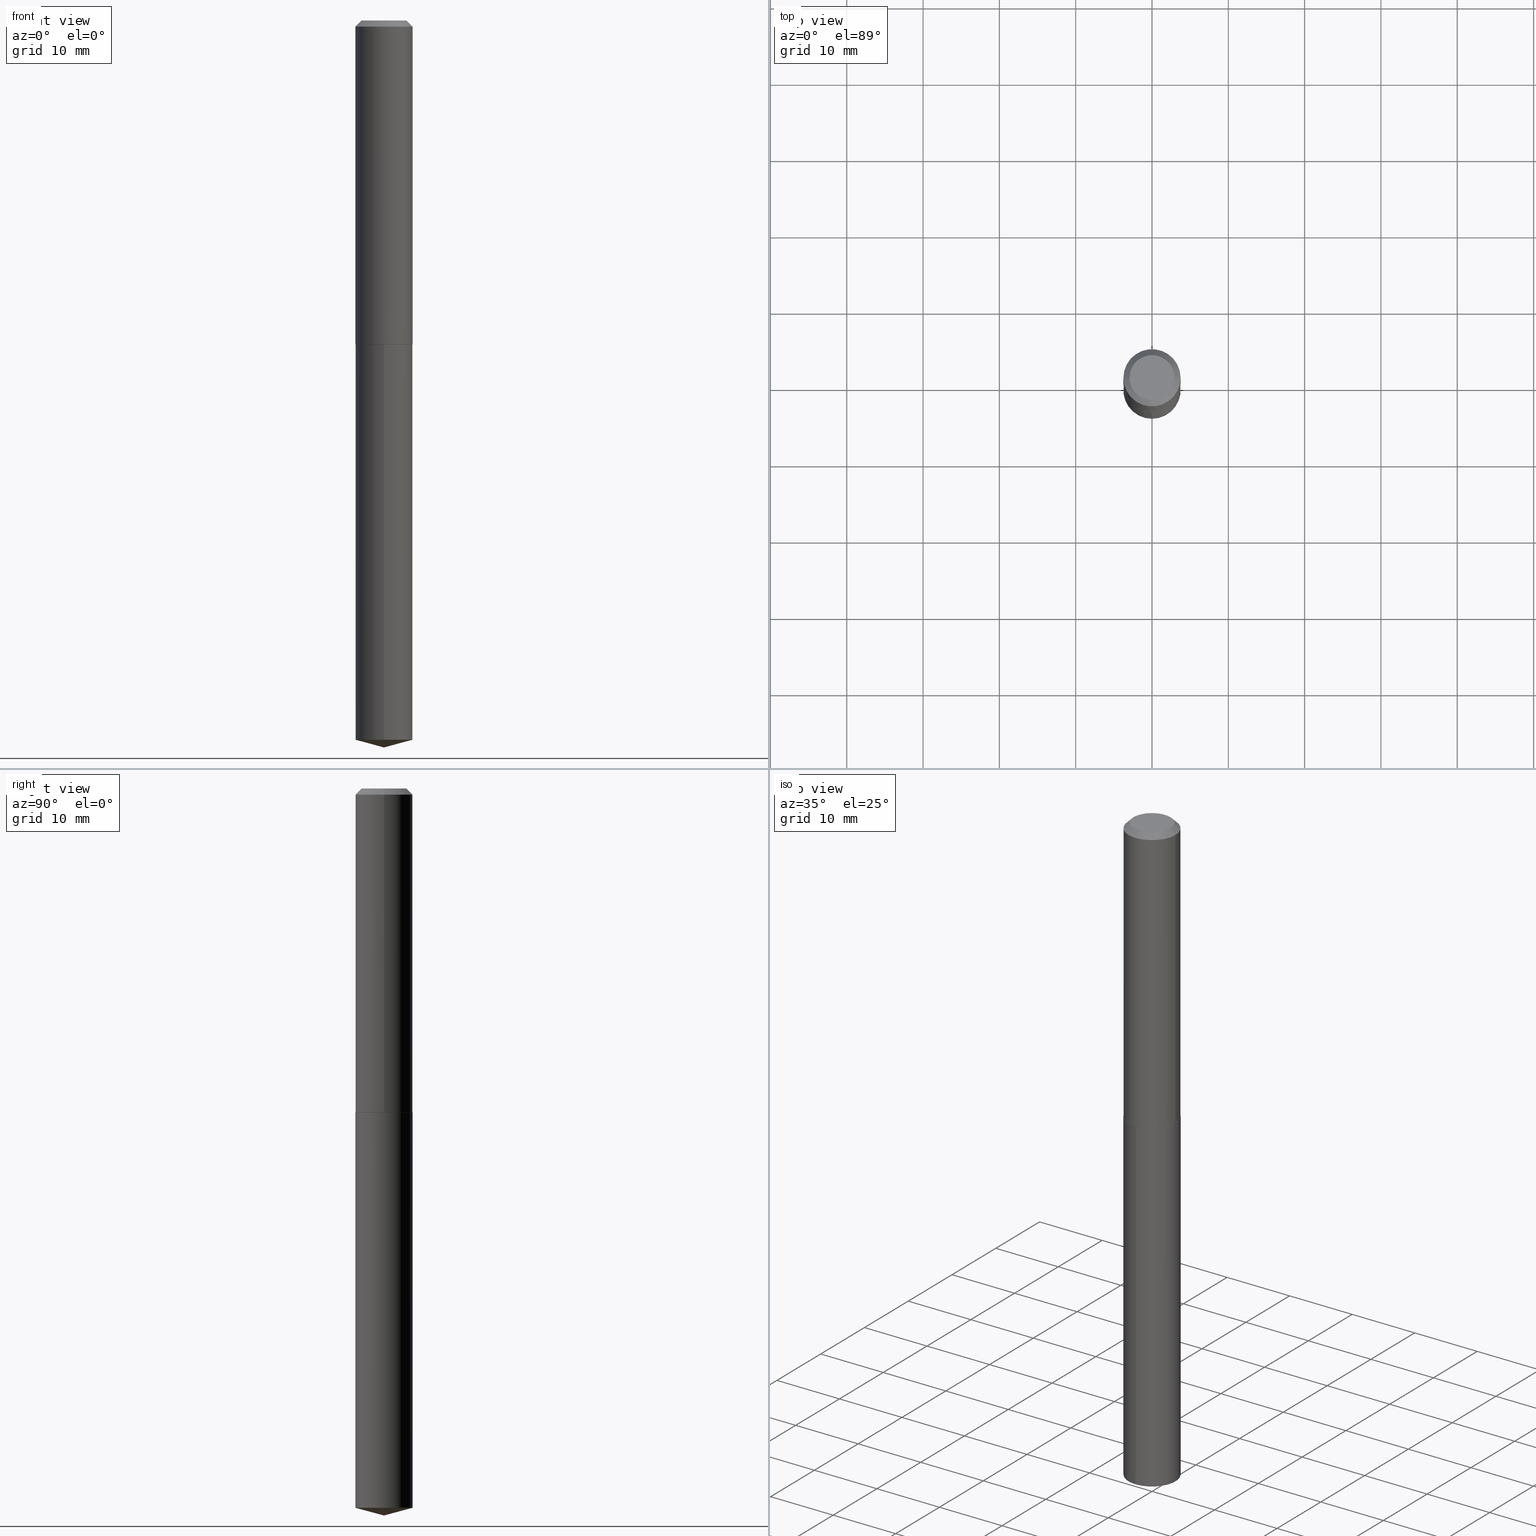
[diagram: canonical four-view strip — front | top / right | iso, engineering-drawing reading convention]
A machine part, canonical four-view strip (front | top / right | iso — engineering-drawing reading convention). The complete STEP part file that produces these views, byte-faithful:
ISO-10303-21;
HEADER;
FILE_DESCRIPTION (( 'STEP AP203' ),
    '1' );
FILE_NAME ('58071.STEP',
    '2024-04-23T01:21:34',
    ( '' ),
    ( '' ),
    'SwSTEP 2.0',
    'SolidWorks 2023',
    '' );
FILE_SCHEMA (( 'CONFIG_CONTROL_DESIGN' ));
ENDSEC;

DATA;
#1 = APPROVAL_DATE_TIME ( #176, #377 ) ;
#2 = FACE_OUTER_BOUND ( 'NONE', #104, .T. ) ;
#3 = CALENDAR_DATE ( 2024, 22, 4 ) ;
#4 = AXIS2_PLACEMENT_3D ( 'NONE', #26, #32, #238 ) ;
#5 = DIRECTION ( 'NONE',  ( -2.438088387897960049E-29, 3.491481338843145188E-15, 1.000000000000000000 ) ) ;
#6 = CC_DESIGN_DATE_AND_TIME_ASSIGNMENT ( #149, #271, ( #236 ) ) ;
#7 = FACE_OUTER_BOUND ( 'NONE', #385, .T. ) ;
#8 = CIRCLE ( 'NONE', #17, 0.1474999999999999922 ) ;
#9 = EDGE_CURVE ( 'NONE', #108, #114, #170, .T. ) ;
#10 = CARTESIAN_POINT ( 'NONE',  ( -3.743544432386685216E-48, 5.344789307371254673E-34, 1.530808498934202323E-19 ) ) ;
#11 = CIRCLE ( 'NONE', #374, 0.1474999999999999922 ) ;
#12 = CARTESIAN_POINT ( 'NONE',  ( -8.711028179821848430E-28, 1.243632738645237453E-13, 35.62007874015748143 ) ) ;
#13 = EDGE_CURVE ( 'NONE', #228, #379, #56, .T. ) ;
#14 = FACE_OUTER_BOUND ( 'NONE', #382, .T. ) ;
#15 = ORIENTED_EDGE ( 'NONE', *, *, #305, .T. ) ;
#16 = CARTESIAN_POINT ( 'NONE',  ( -8.711028179821848430E-28, 1.243632738645237453E-13, 35.62007874015748143 ) ) ;
#17 = AXIS2_PLACEMENT_3D ( 'NONE', #321, #230, #45 ) ;
#18 = ADVANCED_FACE ( 'NONE', ( #320 ), #186, .T. ) ;
#19 = LINE ( 'NONE', #144, #23 ) ;
#20 = LINE ( 'NONE', #378, #369 ) ;
#21 = CARTESIAN_POINT ( 'NONE',  ( 4.083932906329177803E-29, -5.830773835868053056E-15, -1.669999999999999929 ) ) ;
#22 = ORIENTED_EDGE ( 'NONE', *, *, #282, .F. ) ;
#23 = VECTOR ( 'NONE', #173, 39.37007874015748854 ) ;
#24 = CARTESIAN_POINT ( 'NONE',  ( 7.642090019328604414E-31, -1.091087918388490513E-16, -0.03125000000000021511 ) ) ;
#25 = EDGE_CURVE ( 'NONE', #228, #257, #19, .T. ) ;
#26 = CARTESIAN_POINT ( 'NONE',  ( 4.082710171926086683E-29, -5.829028095198632341E-15, -1.669500000000000428 ) ) ;
#27 = PERSON_AND_ORGANIZATION ( #86, #90 ) ;
#28 = CYLINDRICAL_SURFACE ( 'NONE', #380, 0.1474999999999999922 ) ;
#29 = PRODUCT_DEFINITION_SHAPE ( 'NONE', 'NONE',  #132 ) ;
#30 = AXIS2_PLACEMENT_3D ( 'NONE', #65, #335, #187 ) ;
#31 = CARTESIAN_POINT ( 'NONE',  ( 9.170535404465891907E-29, -1.309301580912238028E-14, -3.750000000000000000 ) ) ;
#32 = DIRECTION ( 'NONE',  ( -2.445468806185136597E-29, 3.491481338843145583E-15, 1.000000000000000000 ) ) ;
#33 = MANIFOLD_SOLID_BREP ( 'Body-Move/Copy2[1]', #141 ) ;
#34 = VECTOR ( 'NONE', #352, 39.37007874015748143 ) ;
#35 = CARTESIAN_POINT ( 'NONE',  ( 0.1475000000000002143, -6.859015090157358101E-15, -1.669500000000000428 ) ) ;
#36 = VECTOR ( 'NONE', #334, 39.37007874015748143 ) ;
#37 = DIRECTION ( 'NONE',  ( 2.438088387897960049E-29, -3.491481338843145188E-15, -1.000000000000000000 ) ) ;
#38 = ORIENTED_EDGE ( 'NONE', *, *, #117, .F. ) ;
#39 = DIRECTION ( 'NONE',  ( -2.445535589774475660E-29, 3.491385700942126033E-15, 1.000000000000000000 ) ) ;
#40 = ORIENTED_EDGE ( 'NONE', *, *, #200, .F. ) ;
#41 = APPROVAL ( #332, 'UNSPECIFIED' ) ;
#42 = CIRCLE ( 'NONE', #226, 0.1474999999999999922 ) ;
#43 = DIRECTION ( 'NONE',  ( 1.000000000000000000, -6.982962677686266711E-15, 4.876177086992617819E-29 ) ) ;
#44 = ORIENTED_EDGE ( 'NONE', *, *, #82, .T. ) ;
#45 = DIRECTION ( 'NONE',  ( -6.982962677686265922E-15, -1.000000000000000000, 3.704200669375272254E-15 ) ) ;
#46 = ORIENTED_EDGE ( 'NONE', *, *, #200, .T. ) ;
#47 = EDGE_CURVE ( 'NONE', #257, #108, #194, .T. ) ;
#48 = LINE ( 'NONE', #103, #188 ) ;
#49 = ORIENTED_EDGE ( 'NONE', *, *, #92, .T. ) ;
#50 =( CONVERSION_BASED_UNIT ( 'INCH', #384 ) LENGTH_UNIT ( ) NAMED_UNIT ( #267 ) );
#51 = ORIENTED_EDGE ( 'NONE', *, *, #371, .T. ) ;
#52 = DIRECTION ( 'NONE',  ( -2.445535589774475660E-29, 3.491385700942126033E-15, 1.000000000000000000 ) ) ;
#53 = APPROVAL ( #211, 'UNSPECIFIED' ) ;
#54 = COORDINATED_UNIVERSAL_TIME_OFFSET ( 5, 0, .BEHIND. ) ;
#55 = CARTESIAN_POINT ( 'NONE',  ( 4.082710171926086683E-29, -5.829028095198632341E-15, -1.669500000000000428 ) ) ;
#56 = CIRCLE ( 'NONE', #106, 0.1470000000000003804 ) ;
#57 = CONICAL_SURFACE ( 'NONE', #4, 0.1475000000000002143, 0.7853981633976532262 ) ;
#58 = APPROVAL_PERSON_ORGANIZATION ( #239, #41, #359 ) ;
#59 = APPROVAL_ROLE ( '' ) ;
#60 = LINE ( 'NONE', #206, #89 ) ;
#61 = PERSON_AND_ORGANIZATION ( #86, #90 ) ;
#62 = DIRECTION ( 'NONE',  ( 1.000000000000000000, -6.982962677686265922E-15, 0.000000000000000000 ) ) ;
#63 = CC_DESIGN_DATE_AND_TIME_ASSIGNMENT ( #356, #389, ( #132 ) ) ;
#64 = PERSON_AND_ORGANIZATION ( #86, #90 ) ;
#65 = CARTESIAN_POINT ( 'NONE',  ( 7.642090019328604414E-31, -1.091087918388490513E-16, -0.03125000000000021511 ) ) ;
#66 = CIRCLE ( 'NONE', #278, 0.1474999999999999922 ) ;
#67 = DIRECTION ( 'NONE',  ( 6.863315791527694259E-15, 0.9659258262890694224, 0.2588190451025162986 ) ) ;
#68 = CIRCLE ( 'NONE', #262, 0.1162499999999999922 ) ;
#69 = ORIENTED_EDGE ( 'NONE', *, *, #353, .F. ) ;
#70 = VERTEX_POINT ( 'NONE', #204 ) ;
#71 = CC_DESIGN_PERSON_AND_ORGANIZATION_ASSIGNMENT ( #361, #241, ( #236 ) ) ;
#72 = ORIENTED_EDGE ( 'NONE', *, *, #13, .F. ) ;
#73 = EDGE_LOOP ( 'NONE', ( #76, #15, #219, #355 ) ) ;
#74 = CC_DESIGN_APPROVAL ( #377, ( #370 ) ) ;
#75 = EDGE_CURVE ( 'NONE', #70, #317, #66, .T. ) ;
#76 = ORIENTED_EDGE ( 'NONE', *, *, #75, .T. ) ;
#77 = EDGE_LOOP ( 'NONE', ( #148, #268, #199 ) ) ;
#78 = DIRECTION ( 'NONE',  ( -6.982962677686265133E-15, -1.000000000000000000, 3.510303681827624656E-15 ) ) ;
#79 = ORIENTED_EDGE ( 'NONE', *, *, #260, .T. ) ;
#80 = LOCAL_TIME ( 21, 21, 34.00000000000000000, #120 ) ;
#81 = EDGE_LOOP ( 'NONE', ( #168, #343, #286, #40 ) ) ;
#82 = EDGE_CURVE ( 'NONE', #108, #257, #283, .T. ) ;
#83 = APPROVAL_STATUS ( 'not_yet_approved' ) ;
#84 = CARTESIAN_POINT ( 'NONE',  ( 4.083932906329178363E-29, -5.830773835868053845E-15, -1.670000000000000151 ) ) ;
#85 = CALENDAR_DATE ( 2024, 22, 4 ) ;
#86 = PERSON ( 'UNSPECIFIED', 'UNSPECIFIED', 'UNSPECIFIED', ('UNSPECIFIED'), ('UNSPECIFIED'), ('UNSPECIFIED') ) ;
#87 = PRODUCT ( '58071', '58071', '', ( #91 ) ) ;
#88 = FACE_OUTER_BOUND ( 'NONE', #163, .T. ) ;
#89 = VECTOR ( 'NONE', #242, 39.37007874015748143 ) ;
#90 = ORGANIZATION ( 'UNSPECIFIED', 'UNSPECIFIED', '' ) ;
#91 = MECHANICAL_CONTEXT ( 'NONE', #112, 'mechanical' ) ;
#92 = EDGE_CURVE ( 'NONE', #225, #317, #302, .T. ) ;
#93 = CARTESIAN_POINT ( 'NONE',  ( 4.083932906329178363E-29, -5.830773835868053845E-15, -1.670000000000000151 ) ) ;
#94 = SHAPE_DEFINITION_REPRESENTATION ( #29, #96 ) ;
#95 = DIRECTION ( 'NONE',  ( 1.000000000000000000, -6.982962677686265922E-15, 0.000000000000000000 ) ) ;
#96 = ADVANCED_BREP_SHAPE_REPRESENTATION ( '58071', ( #33, #166, #109 ), #119 ) ;
#97 = DIRECTION ( 'NONE',  ( -2.445535589774475660E-29, 3.491385700942126033E-15, 1.000000000000000000 ) ) ;
#98 = AXIS2_PLACEMENT_3D ( 'NONE', #258, #203, #164 ) ;
#99 = FACE_OUTER_BOUND ( 'NONE', #191, .T. ) ;
#100 = EDGE_LOOP ( 'NONE', ( #376, #44, #46, #265 ) ) ;
#101 = AXIS2_PLACEMENT_3D ( 'NONE', #55, #366, #62 ) ;
#102 = ADVANCED_FACE ( 'NONE', ( #88 ), #157, .F. ) ;
#103 = CARTESIAN_POINT ( 'NONE',  ( -0.1474999999999999922, 9.208782031198752786E-16, -0.03125000000000021511 ) ) ;
#104 = EDGE_LOOP ( 'NONE', ( #231, #192, #189, #198 ) ) ;
#105 = DIRECTION ( 'NONE',  ( -0.7071067811866923458, 7.493145998870876386E-15, 0.7071067811864025776 ) ) ;
#106 = AXIS2_PLACEMENT_3D ( 'NONE', #21, #295, #322 ) ;
#107 = CIRCLE ( 'NONE', #209, 0.1474999999999999922 ) ;
#108 = VERTEX_POINT ( 'NONE', #131 ) ;
#109 = AXIS2_PLACEMENT_3D ( 'NONE', #152, #125, #327 ) ;
#110 = DIRECTION ( 'NONE',  ( -0.7071067811865451302, 2.468850131082231817E-15, -0.7071067811865499042 ) ) ;
#111 = ORIENTED_EDGE ( 'NONE', *, *, #353, .T. ) ;
#112 = APPLICATION_CONTEXT ( 'configuration controlled 3d designs of mechanical parts and assemblies' ) ;
#113 = FACE_OUTER_BOUND ( 'NONE', #373, .T. ) ;
#114 = VERTEX_POINT ( 'NONE', #182 ) ;
#115 =( NAMED_UNIT ( * ) SI_UNIT ( $, .STERADIAN. ) SOLID_ANGLE_UNIT ( ) );
#116 = ORIENTED_EDGE ( 'NONE', *, *, #25, .F. ) ;
#117 = EDGE_CURVE ( 'NONE', #225, #70, #121, .T. ) ;
#118 = AXIS2_PLACEMENT_3D ( 'NONE', #10, #37, #253 ) ;
#119 =( GEOMETRIC_REPRESENTATION_CONTEXT ( 3 ) GLOBAL_UNCERTAINTY_ASSIGNED_CONTEXT ( ( #250 ) ) GLOBAL_UNIT_ASSIGNED_CONTEXT ( ( #50, #146, #115 ) ) REPRESENTATION_CONTEXT ( 'NONE', 'WORKASPACE' ) );
#120 = COORDINATED_UNIVERSAL_TIME_OFFSET ( 5, 0, .BEHIND. ) ;
#121 = LINE ( 'NONE', #31, #346 ) ;
#122 = CALENDAR_DATE ( 2024, 22, 4 ) ;
#123 = CARTESIAN_POINT ( 'NONE',  ( 4.083932906329178363E-29, -5.830773835868053845E-15, -1.670000000000000151 ) ) ;
#124 = ADVANCED_FACE ( 'NONE', ( #331 ), #165, .T. ) ;
#125 = DIRECTION ( 'NONE',  ( 0.000000000000000000, 0.000000000000000000, 1.000000000000000000 ) ) ;
#126 = FACE_OUTER_BOUND ( 'NONE', #100, .T. ) ;
#127 = AXIS2_PLACEMENT_3D ( 'NONE', #147, #386, #235 ) ;
#128 = APPROVAL_DATE_TIME ( #365, #41 ) ;
#129 = CARTESIAN_POINT ( 'NONE',  ( 6.251114920618448374E-29, -2.727245843065798504E-15, -1.669999999999999929 ) ) ;
#130 = CALENDAR_DATE ( 2024, 22, 4 ) ;
#131 = CARTESIAN_POINT ( 'NONE',  ( -0.1475000000000002143, -4.780977559952484031E-15, -1.669500000000000428 ) ) ;
#132 = PRODUCT_DEFINITION ( 'UNKNOWN', '', #370, #220 ) ;
#133 = AXIS2_PLACEMENT_3D ( 'NONE', #319, #256, #264 ) ;
#134 = ORIENTED_EDGE ( 'NONE', *, *, #358, .T. ) ;
#135 = APPLICATION_CONTEXT ( 'configuration controlled 3d designs of mechanical parts and assemblies' ) ;
#136 = ADVANCED_FACE ( 'NONE', ( #279 ), #364, .F. ) ;
#137 = PLANE ( 'NONE',  #118 ) ;
#138 = ORIENTED_EDGE ( 'NONE', *, *, #339, .F. ) ;
#139 = DIRECTION ( 'NONE',  ( -2.445535589774475660E-29, 3.491385700942126033E-15, 1.000000000000000000 ) ) ;
#140 = EDGE_LOOP ( 'NONE', ( #284, #111, #289, #116 ) ) ;
#141 = CLOSED_SHELL ( 'NONE', ( #172, #329, #18, #151, #102 ) ) ;
#142 = AXIS2_PLACEMENT_3D ( 'NONE', #84, #97, #214 ) ;
#143 = DIRECTION ( 'NONE',  ( -2.445535589774475660E-29, 3.491385700942126033E-15, 1.000000000000000000 ) ) ;
#144 = CARTESIAN_POINT ( 'NONE',  ( 0.1475000000000002143, -6.859015090157358101E-15, -1.669500000000000428 ) ) ;
#145 = EDGE_CURVE ( 'NONE', #114, #167, #107, .T. ) ;
#146 =( NAMED_UNIT ( * ) PLANE_ANGLE_UNIT ( ) SI_UNIT ( $, .RADIAN. ) );
#147 = CARTESIAN_POINT ( 'NONE',  ( 4.082710171926086683E-29, -5.829028095198632341E-15, -1.669500000000000428 ) ) ;
#148 = ORIENTED_EDGE ( 'NONE', *, *, #92, .F. ) ;
#149 = DATE_AND_TIME ( #122, #180 ) ;
#150 = DIRECTION ( 'NONE',  ( -2.445535589774475660E-29, 3.491385700942126033E-15, 1.000000000000000000 ) ) ;
#151 = ADVANCED_FACE ( 'NONE', ( #7 ), #28, .T. ) ;
#152 = CARTESIAN_POINT ( 'NONE',  ( 0.000000000000000000, 0.000000000000000000, 0.000000000000000000 ) ) ;
#153 = DIRECTION ( 'NONE',  ( 1.000000000000000000, -6.982962677686265922E-15, 0.000000000000000000 ) ) ;
#154 = PERSON_AND_ORGANIZATION_ROLE ( 'design_owner' ) ;
#155 = DIRECTION ( 'NONE',  ( -2.445468806185136597E-29, 3.491481338843145583E-15, 1.000000000000000000 ) ) ;
#156 = CONICAL_SURFACE ( 'NONE', #30, 0.1474999999999999922, 0.7853981633974449483 ) ;
#157 = PLANE ( 'NONE',  #336 ) ;
#158 = CARTESIAN_POINT ( 'NONE',  ( 0.1470000000000003804, -6.857269349487937386E-15, -1.669999999999999929 ) ) ;
#159 = DIRECTION ( 'NONE',  ( -2.445468806185136597E-29, 3.491481338843145583E-15, 1.000000000000000000 ) ) ;
#160 = VECTOR ( 'NONE', #67, 39.37007874015748854 ) ;
#161 = CARTESIAN_POINT ( 'NONE',  ( 0.1474999999999999922, -1.121032246510149746E-15, -0.03125000000000021511 ) ) ;
#162 = DIRECTION ( 'NONE',  ( -6.982962677686265922E-15, -1.000000000000000000, 3.704200669375272254E-15 ) ) ;
#163 = EDGE_LOOP ( 'NONE', ( #266, #134 ) ) ;
#164 = DIRECTION ( 'NONE',  ( -1.000000000000000000, 6.982962677686265922E-15, 0.000000000000000000 ) ) ;
#165 = CONICAL_SURFACE ( 'NONE', #387, 0.1475000000000002143, 0.7853981633976532262 ) ;
#166 = MANIFOLD_SOLID_BREP ( 'Body-Move/Copy2[2]', #368 ) ;
#167 = VERTEX_POINT ( 'NONE', #246 ) ;
#168 = ORIENTED_EDGE ( 'NONE', *, *, #47, .T. ) ;
#169 = CIRCLE ( 'NONE', #287, 0.1474999999999999922 ) ;
#170 = LINE ( 'NONE', #232, #34 ) ;
#171 = APPROVAL_PERSON_ORGANIZATION ( #64, #377, #59 ) ;
#172 = ADVANCED_FACE ( 'NONE', ( #244 ), #362, .T. ) ;
#173 = DIRECTION ( 'NONE',  ( 0.7071067811866923458, -2.468850131083773646E-15, 0.7071067811864025776 ) ) ;
#174 = PERSON_AND_ORGANIZATION ( #86, #90 ) ;
#175 = ORIENTED_EDGE ( 'NONE', *, *, #269, .T. ) ;
#176 = DATE_AND_TIME ( #3, #347 ) ;
#177 = EDGE_CURVE ( 'NONE', #315, #372, #169, .T. ) ;
#178 = DIRECTION ( 'NONE',  ( -6.982962677686265922E-15, -1.000000000000000000, 3.704200669375272254E-15 ) ) ;
#179 = VECTOR ( 'NONE', #105, 39.37007874015748854 ) ;
#180 = LOCAL_TIME ( 21, 21, 34.00000000000000000, #307 ) ;
#181 = DATE_AND_TIME ( #130, #342 ) ;
#182 = CARTESIAN_POINT ( 'NONE',  ( -0.1474999999999999922, -1.921017908272591621E-15, -0.03125000000000021511 ) ) ;
#183 = PERSON_AND_ORGANIZATION_ROLE ( 'creator' ) ;
#184 = CARTESIAN_POINT ( 'NONE',  ( 4.083932906329178363E-29, -5.830773835868053845E-15, -1.670000000000000151 ) ) ;
#185 = DIRECTION ( 'NONE',  ( 6.982962677686265922E-15, 1.000000000000000000, -3.491385700942126427E-15 ) ) ;
#186 = CONICAL_SURFACE ( 'NONE', #341, 146.9311341562556663, 1.308996938995748316 ) ;
#187 = DIRECTION ( 'NONE',  ( -1.000000000000000000, 6.982962677686265922E-15, 0.000000000000000000 ) ) ;
#188 = VECTOR ( 'NONE', #110, 39.37007874015748143 ) ;
#189 = ORIENTED_EDGE ( 'NONE', *, *, #339, .T. ) ;
#190 = DIRECTION ( 'NONE',  ( 0.7071067811865451302, -7.319954787623248157E-15, -0.7071067811865499042 ) ) ;
#191 = EDGE_LOOP ( 'NONE', ( #175, #51 ) ) ;
#192 = ORIENTED_EDGE ( 'NONE', *, *, #269, .F. ) ;
#193 = EDGE_CURVE ( 'NONE', #70, #315, #240, .T. ) ;
#194 = CIRCLE ( 'NONE', #127, 0.1475000000000002143 ) ;
#195 = FACE_OUTER_BOUND ( 'NONE', #81, .T. ) ;
#196 = AXIS2_PLACEMENT_3D ( 'NONE', #129, #5, #210 ) ;
#197 = ORIENTED_EDGE ( 'NONE', *, *, #305, .F. ) ;
#198 = ORIENTED_EDGE ( 'NONE', *, *, #145, .T. ) ;
#199 = ORIENTED_EDGE ( 'NONE', *, *, #285, .F. ) ;
#200 = EDGE_CURVE ( 'NONE', #257, #167, #60, .T. ) ;
#201 = AXIS2_PLACEMENT_3D ( 'NONE', #280, #222, #311 ) ;
#202 = VERTEX_POINT ( 'NONE', #333 ) ;
#203 = DIRECTION ( 'NONE',  ( 2.445468806185136597E-29, -3.491481338843145583E-15, -1.000000000000000000 ) ) ;
#204 = CARTESIAN_POINT ( 'NONE',  ( -1.029986994958633857E-15, -0.1475000000000130096, -3.710477494116409147 ) ) ;
#205 = APPLICATION_PROTOCOL_DEFINITION ( 'international standard', 'config_control_design', 1994, #135 ) ;
#206 = CARTESIAN_POINT ( 'NONE',  ( 0.1475000000000001033, -1.029986994958724971E-15, 7.192360744299009779E-30 ) ) ;
#207 = PERSON_AND_ORGANIZATION_ROLE ( 'creator' ) ;
#208 = CARTESIAN_POINT ( 'NONE',  ( 4.082710171926086683E-29, -5.829028095198632341E-15, -1.669500000000000428 ) ) ;
#209 = AXIS2_PLACEMENT_3D ( 'NONE', #24, #155, #272 ) ;
#210 = DIRECTION ( 'NONE',  ( 1.000000000000000000, -6.982962677686265922E-15, 4.876176775795935793E-29 ) ) ;
#211 = APPROVAL_STATUS ( 'not_yet_approved' ) ;
#212 = DIRECTION ( 'NONE',  ( -2.445535589774475660E-29, 3.491385700942126033E-15, 1.000000000000000000 ) ) ;
#213 = CC_DESIGN_PERSON_AND_ORGANIZATION_ASSIGNMENT ( #273, #299, ( #370 ) ) ;
#214 = DIRECTION ( 'NONE',  ( -6.982962677686265922E-15, -1.000000000000000000, 3.704200669375272254E-15 ) ) ;
#215 = CIRCLE ( 'NONE', #312, 0.1470000000000003804 ) ;
#216 = LINE ( 'NONE', #161, #254 ) ;
#217 = ADVANCED_FACE ( 'NONE', ( #304 ), #57, .T. ) ;
#218 = DIRECTION ( 'NONE',  ( 1.000000000000000000, -6.982962677686266711E-15, 4.876177086992617819E-29 ) ) ;
#219 = ORIENTED_EDGE ( 'NONE', *, *, #177, .F. ) ;
#220 = DESIGN_CONTEXT ( 'detailed design', #135, 'design' ) ;
#221 = CARTESIAN_POINT ( 'NONE',  ( 4.083932906329177803E-29, -5.830773835868053056E-15, -1.669999999999999929 ) ) ;
#222 = DIRECTION ( 'NONE',  ( -2.445468806185136597E-29, 3.491481338843145583E-15, 1.000000000000000000 ) ) ;
#223 = ADVANCED_FACE ( 'NONE', ( #2 ), #156, .T. ) ;
#224 = CARTESIAN_POINT ( 'NONE',  ( -0.1475000000000002143, -4.780977559952484031E-15, -1.669500000000000428 ) ) ;
#225 = VERTEX_POINT ( 'NONE', #309 ) ;
#226 = AXIS2_PLACEMENT_3D ( 'NONE', #313, #39, #162 ) ;
#227 = DIRECTION ( 'NONE',  ( -2.445535589774475380E-29, 3.491385700942126427E-15, 1.000000000000000000 ) ) ;
#228 = VERTEX_POINT ( 'NONE', #158 ) ;
#229 = CC_DESIGN_PERSON_AND_ORGANIZATION_ASSIGNMENT ( #174, #154, ( #87 ) ) ;
#230 = DIRECTION ( 'NONE',  ( -2.445535589774475660E-29, 3.491385700942126033E-15, 1.000000000000000000 ) ) ;
#231 = ORIENTED_EDGE ( 'NONE', *, *, #260, .F. ) ;
#232 = CARTESIAN_POINT ( 'NONE',  ( -0.1475000000000001033, 1.048050535246148508E-15, -7.255429258125991787E-30 ) ) ;
#233 = CYLINDRICAL_SURFACE ( 'NONE', #133, 0.1475000000000001033 ) ;
#234 = AXIS2_PLACEMENT_3D ( 'NONE', #251, #310, #218 ) ;
#235 = DIRECTION ( 'NONE',  ( 1.000000000000000000, -6.982962677686265922E-15, 0.000000000000000000 ) ) ;
#236 = SECURITY_CLASSIFICATION ( '', '', #245 ) ;
#237 = APPROVAL_ROLE ( '' ) ;
#238 = DIRECTION ( 'NONE',  ( 1.000000000000000000, -6.982962677686265922E-15, 0.000000000000000000 ) ) ;
#239 = PERSON_AND_ORGANIZATION ( #86, #90 ) ;
#240 = LINE ( 'NONE', #360, #36 ) ;
#241 = PERSON_AND_ORGANIZATION_ROLE ( 'classification_officer' ) ;
#242 = DIRECTION ( 'NONE',  ( -2.445468806185136877E-29, 3.491481338843145188E-15, 1.000000000000000000 ) ) ;
#243 = EDGE_CURVE ( 'NONE', #167, #114, #11, .T. ) ;
#244 = FACE_OUTER_BOUND ( 'NONE', #73, .T. ) ;
#245 = SECURITY_CLASSIFICATION_LEVEL ( 'unclassified' ) ;
#246 = CARTESIAN_POINT ( 'NONE',  ( 0.1474999999999999922, -1.139095786797573283E-15, -0.03125000000000021511 ) ) ;
#247 = CONICAL_SURFACE ( 'NONE', #293, 146.9311341562556663, 1.308996938995748316 ) ;
#248 = ADVANCED_FACE ( 'NONE', ( #126 ), #338, .T. ) ;
#249 = APPROVAL_PERSON_ORGANIZATION ( #27, #53, #237 ) ;
#250 = UNCERTAINTY_MEASURE_WITH_UNIT (LENGTH_MEASURE( 1.000000000000000082E-05 ), #50, 'distance_accuracy_value', 'NONE');
#251 = CARTESIAN_POINT ( 'NONE',  ( -7.487088864773370432E-48, 1.068957861474250935E-33, 3.061616997868404646E-19 ) ) ;
#252 = ORIENTED_EDGE ( 'NONE', *, *, #193, .T. ) ;
#253 = DIRECTION ( 'NONE',  ( -1.000000000000000000, 6.982962677686265922E-15, -4.876176775795935793E-29 ) ) ;
#254 = VECTOR ( 'NONE', #190, 39.37007874015748143 ) ;
#255 = ADVANCED_FACE ( 'NONE', ( #99 ), #137, .F. ) ;
#256 = DIRECTION ( 'NONE',  ( -2.445468806185136597E-29, 3.491481338843145583E-15, 1.000000000000000000 ) ) ;
#257 = VERTEX_POINT ( 'NONE', #35 ) ;
#258 = CARTESIAN_POINT ( 'NONE',  ( 7.642090019328604414E-31, -1.091087918388490513E-16, -0.03125000000000021511 ) ) ;
#259 = ORIENTED_EDGE ( 'NONE', *, *, #285, .T. ) ;
#260 = EDGE_CURVE ( 'NONE', #350, #167, #216, .T. ) ;
#261 = CARTESIAN_POINT ( 'NONE',  ( -7.487088864773370432E-48, 1.068957861474250935E-33, 3.061616997868404646E-19 ) ) ;
#262 = AXIS2_PLACEMENT_3D ( 'NONE', #261, #375, #43 ) ;
#263 = DIRECTION ( 'NONE',  ( -6.982962677686265133E-15, -1.000000000000000000, 3.510303681827624656E-15 ) ) ;
#264 = DIRECTION ( 'NONE',  ( 1.000000000000000000, -6.982962677686265922E-15, 4.876176775795935232E-29 ) ) ;
#265 = ORIENTED_EDGE ( 'NONE', *, *, #145, .F. ) ;
#266 = ORIENTED_EDGE ( 'NONE', *, *, #177, .T. ) ;
#267 = DIMENSIONAL_EXPONENTS ( 1.000000000000000000, 0.000000000000000000, 0.000000000000000000, 0.000000000000000000, 0.000000000000000000, 0.000000000000000000, 0.000000000000000000 ) ;
#268 = ORIENTED_EDGE ( 'NONE', *, *, #117, .T. ) ;
#269 = EDGE_CURVE ( 'NONE', #202, #350, #300, .T. ) ;
#270 = CC_DESIGN_SECURITY_CLASSIFICATION ( #236, ( #370 ) ) ;
#271 = DATE_TIME_ROLE ( 'classification_date' ) ;
#272 = DIRECTION ( 'NONE',  ( 1.000000000000000000, -6.982962677686265922E-15, 0.000000000000000000 ) ) ;
#273 = PERSON_AND_ORGANIZATION ( #86, #90 ) ;
#274 = DIRECTION ( 'NONE',  ( 2.445535589774475099E-29, -3.491385700942126427E-15, -1.000000000000000000 ) ) ;
#275 = CC_DESIGN_PERSON_AND_ORGANIZATION_ASSIGNMENT ( #297, #183, ( #132 ) ) ;
#276 = COORDINATED_UNIVERSAL_TIME_OFFSET ( 5, 0, .BEHIND. ) ;
#277 = CARTESIAN_POINT ( 'NONE',  ( 9.170760417602529405E-29, -1.309269637853297410E-14, -3.750000000000000000 ) ) ;
#278 = AXIS2_PLACEMENT_3D ( 'NONE', #324, #52, #178 ) ;
#279 = FACE_OUTER_BOUND ( 'NONE', #318, .T. ) ;
#280 = CARTESIAN_POINT ( 'NONE',  ( 0.000000000000000000, 0.000000000000000000, 0.000000000000000000 ) ) ;
#281 = DIRECTION ( 'NONE',  ( 1.000000000000000000, -6.982962677686268288E-15, 0.000000000000000000 ) ) ;
#282 = EDGE_CURVE ( 'NONE', #379, #228, #215, .T. ) ;
#283 = CIRCLE ( 'NONE', #101, 0.1475000000000002143 ) ;
#284 = ORIENTED_EDGE ( 'NONE', *, *, #13, .T. ) ;
#285 = EDGE_CURVE ( 'NONE', #317, #70, #42, .T. ) ;
#286 = ORIENTED_EDGE ( 'NONE', *, *, #243, .F. ) ;
#287 = AXIS2_PLACEMENT_3D ( 'NONE', #123, #212, #306 ) ;
#288 = CARTESIAN_POINT ( 'NONE',  ( -1.029986994958683358E-15, -0.1475000000000058209, -1.669999999999999707 ) ) ;
#289 = ORIENTED_EDGE ( 'NONE', *, *, #47, .F. ) ;
#290 = ADVANCED_FACE ( 'NONE', ( #14 ), #328, .T. ) ;
#291 = APPLICATION_PROTOCOL_DEFINITION ( 'international standard', 'config_control_design', 1994, #112 ) ;
#292 = ORIENTED_EDGE ( 'NONE', *, *, #82, .F. ) ;
#293 = AXIS2_PLACEMENT_3D ( 'NONE', #12, #139, #78 ) ;
#294 = CARTESIAN_POINT ( 'NONE',  ( 1.048050535246238832E-15, 0.1474999999999941636, -1.670000000000000817 ) ) ;
#295 = DIRECTION ( 'NONE',  ( -2.445468806185136597E-29, 3.491481338843145583E-15, 1.000000000000000000 ) ) ;
#296 = ORIENTED_EDGE ( 'NONE', *, *, #358, .F. ) ;
#297 = PERSON_AND_ORGANIZATION ( #86, #90 ) ;
#298 = ORIENTED_EDGE ( 'NONE', *, *, #75, .F. ) ;
#299 = PERSON_AND_ORGANIZATION_ROLE ( 'design_supplier' ) ;
#300 = CIRCLE ( 'NONE', #234, 0.1162499999999999922 ) ;
#301 = LOCAL_TIME ( 21, 21, 34.00000000000000000, #276 ) ;
#302 = LINE ( 'NONE', #277, #160 ) ;
#303 = APPROVAL_DATE_TIME ( #181, #53 ) ;
#304 = FACE_OUTER_BOUND ( 'NONE', #344, .T. ) ;
#305 = EDGE_CURVE ( 'NONE', #317, #372, #20, .T. ) ;
#306 = DIRECTION ( 'NONE',  ( -6.982962677686265922E-15, -1.000000000000000000, 3.704200669375272254E-15 ) ) ;
#307 = COORDINATED_UNIVERSAL_TIME_OFFSET ( 5, 0, .BEHIND. ) ;
#308 = DIRECTION ( 'NONE',  ( -6.745023994389839133E-15, -0.9659258262890676461, 0.2588190451025230709 ) ) ;
#309 = CARTESIAN_POINT ( 'NONE',  ( 9.170758461654283654E-29, -1.309269637853297410E-14, -3.750000000000000000 ) ) ;
#310 = DIRECTION ( 'NONE',  ( -2.445468806185136597E-29, 3.491481338843145583E-15, 1.000000000000000000 ) ) ;
#311 = DIRECTION ( 'NONE',  ( 1.000000000000000000, -6.982962677686265922E-15, 4.876176775795935232E-29 ) ) ;
#312 = AXIS2_PLACEMENT_3D ( 'NONE', #221, #159, #281 ) ;
#313 = CARTESIAN_POINT ( 'NONE',  ( 9.073993238324695790E-29, -1.295486778192030697E-14, -3.710477494116409591 ) ) ;
#314 = ORIENTED_EDGE ( 'NONE', *, *, #243, .T. ) ;
#315 = VERTEX_POINT ( 'NONE', #288 ) ;
#316 = CARTESIAN_POINT ( 'NONE',  ( 1.048050535246238832E-15, 0.1474999999999870859, -3.710477494116410480 ) ) ;
#317 = VERTEX_POINT ( 'NONE', #316 ) ;
#318 = EDGE_LOOP ( 'NONE', ( #72, #22 ) ) ;
#319 = CARTESIAN_POINT ( 'NONE',  ( 0.000000000000000000, 0.000000000000000000, 0.000000000000000000 ) ) ;
#320 = FACE_OUTER_BOUND ( 'NONE', #77, .T. ) ;
#321 = CARTESIAN_POINT ( 'NONE',  ( 4.083932906329178363E-29, -5.830773835868053845E-15, -1.670000000000000151 ) ) ;
#322 = DIRECTION ( 'NONE',  ( 1.000000000000000000, -6.982962677686268288E-15, 0.000000000000000000 ) ) ;
#323 = CARTESIAN_POINT ( 'NONE',  ( -0.1470000000000003804, -4.783626787126593654E-15, -1.669999999999999929 ) ) ;
#324 = CARTESIAN_POINT ( 'NONE',  ( 9.073993238324695790E-29, -1.295486778192030697E-14, -3.710477494116409591 ) ) ;
#325 = CALENDAR_DATE ( 2024, 22, 4 ) ;
#326 = DIRECTION ( 'NONE',  ( -2.445468806185136597E-29, 3.491481338843145583E-15, 1.000000000000000000 ) ) ;
#327 = DIRECTION ( 'NONE',  ( 1.000000000000000000, 0.000000000000000000, 0.000000000000000000 ) ) ;
#328 = CONICAL_SURFACE ( 'NONE', #98, 0.1474999999999999922, 0.7853981633974449483 ) ;
#329 = ADVANCED_FACE ( 'NONE', ( #113 ), #247, .T. ) ;
#330 = CC_DESIGN_APPROVAL ( #41, ( #236 ) ) ;
#331 = FACE_OUTER_BOUND ( 'NONE', #140, .T. ) ;
#332 = APPROVAL_STATUS ( 'not_yet_approved' ) ;
#333 = CARTESIAN_POINT ( 'NONE',  ( -0.1162499999999999922, 8.663238072004519116E-16, 3.061616997809728783E-19 ) ) ;
#334 = DIRECTION ( 'NONE',  ( -2.445535589774475380E-29, 3.491385700942126427E-15, 1.000000000000000000 ) ) ;
#335 = DIRECTION ( 'NONE',  ( 2.445468806185136597E-29, -3.491481338843145583E-15, -1.000000000000000000 ) ) ;
#336 = AXIS2_PLACEMENT_3D ( 'NONE', #184, #274, #185 ) ;
#337 = ADVANCED_FACE ( 'NONE', ( #195 ), #233, .T. ) ;
#338 = CYLINDRICAL_SURFACE ( 'NONE', #201, 0.1475000000000001033 ) ;
#339 = EDGE_CURVE ( 'NONE', #202, #114, #48, .T. ) ;
#340 = ORIENTED_EDGE ( 'NONE', *, *, #25, .T. ) ;
#341 = AXIS2_PLACEMENT_3D ( 'NONE', #16, #143, #263 ) ;
#342 = LOCAL_TIME ( 21, 21, 34.00000000000000000, #54 ) ;
#343 = ORIENTED_EDGE ( 'NONE', *, *, #9, .T. ) ;
#344 = EDGE_LOOP ( 'NONE', ( #69, #348, #340, #292 ) ) ;
#345 = ORIENTED_EDGE ( 'NONE', *, *, #371, .F. ) ;
#346 = VECTOR ( 'NONE', #308, 39.37007874015748143 ) ;
#347 = LOCAL_TIME ( 21, 21, 34.00000000000000000, #363 ) ;
#348 = ORIENTED_EDGE ( 'NONE', *, *, #282, .T. ) ;
#349 =( LENGTH_UNIT ( ) NAMED_UNIT ( * ) SI_UNIT ( $, .METRE. ) );
#350 = VERTEX_POINT ( 'NONE', #351 ) ;
#351 = CARTESIAN_POINT ( 'NONE',  ( 0.1162499999999999922, -9.592825693755452120E-16, 3.061616997930326664E-19 ) ) ;
#352 = DIRECTION ( 'NONE',  ( -2.445468806185136877E-29, 3.491481338843145188E-15, 1.000000000000000000 ) ) ;
#353 = EDGE_CURVE ( 'NONE', #379, #108, #354, .T. ) ;
#354 = LINE ( 'NONE', #224, #179 ) ;
#355 = ORIENTED_EDGE ( 'NONE', *, *, #193, .F. ) ;
#356 = DATE_AND_TIME ( #325, #80 ) ;
#357 = CARTESIAN_POINT ( 'NONE',  ( 7.642090019328604414E-31, -1.091087918388490513E-16, -0.03125000000000021511 ) ) ;
#358 = EDGE_CURVE ( 'NONE', #372, #315, #8, .T. ) ;
#359 = APPROVAL_ROLE ( '' ) ;
#360 = CARTESIAN_POINT ( 'NONE',  ( -1.029986994958683358E-15, -0.1475000000000058209, -1.669999999999999707 ) ) ;
#361 = PERSON_AND_ORGANIZATION ( #86, #90 ) ;
#362 = CYLINDRICAL_SURFACE ( 'NONE', #142, 0.1474999999999999922 ) ;
#363 = COORDINATED_UNIVERSAL_TIME_OFFSET ( 5, 0, .BEHIND. ) ;
#364 = PLANE ( 'NONE',  #196 ) ;
#365 = DATE_AND_TIME ( #85, #301 ) ;
#366 = DIRECTION ( 'NONE',  ( -2.445468806185136597E-29, 3.491481338843145583E-15, 1.000000000000000000 ) ) ;
#367 = PRODUCT_RELATED_PRODUCT_CATEGORY ( 'detail', '', ( #87 ) ) ;
#368 = CLOSED_SHELL ( 'NONE', ( #290, #337, #124, #136, #217, #248, #223, #255 ) ) ;
#369 = VECTOR ( 'NONE', #227, 39.37007874015748143 ) ;
#370 = PRODUCT_DEFINITION_FORMATION_WITH_SPECIFIED_SOURCE ( 'ANY', '', #87, .NOT_KNOWN. ) ;
#371 = EDGE_CURVE ( 'NONE', #350, #202, #68, .T. ) ;
#372 = VERTEX_POINT ( 'NONE', #294 ) ;
#373 = EDGE_LOOP ( 'NONE', ( #38, #49, #298 ) ) ;
#374 = AXIS2_PLACEMENT_3D ( 'NONE', #357, #326, #153 ) ;
#375 = DIRECTION ( 'NONE',  ( -2.445468806185136597E-29, 3.491481338843145583E-15, 1.000000000000000000 ) ) ;
#376 = ORIENTED_EDGE ( 'NONE', *, *, #9, .F. ) ;
#377 = APPROVAL ( #83, 'UNSPECIFIED' ) ;
#378 = CARTESIAN_POINT ( 'NONE',  ( 1.048050535246188542E-15, 0.1474999999999941636, -1.670000000000000817 ) ) ;
#379 = VERTEX_POINT ( 'NONE', #323 ) ;
#380 = AXIS2_PLACEMENT_3D ( 'NONE', #93, #150, #390 ) ;
#381 = CC_DESIGN_APPROVAL ( #53, ( #132 ) ) ;
#382 = EDGE_LOOP ( 'NONE', ( #345, #79, #314, #138 ) ) ;
#383 = CC_DESIGN_PERSON_AND_ORGANIZATION_ASSIGNMENT ( #61, #207, ( #370 ) ) ;
#384 = LENGTH_MEASURE_WITH_UNIT ( LENGTH_MEASURE( 0.02539999999999999897 ), #349 );
#385 = EDGE_LOOP ( 'NONE', ( #197, #259, #252, #296 ) ) ;
#386 = DIRECTION ( 'NONE',  ( -2.445468806185136597E-29, 3.491481338843145583E-15, 1.000000000000000000 ) ) ;
#387 = AXIS2_PLACEMENT_3D ( 'NONE', #208, #388, #95 ) ;
#388 = DIRECTION ( 'NONE',  ( -2.445468806185136597E-29, 3.491481338843145583E-15, 1.000000000000000000 ) ) ;
#389 = DATE_TIME_ROLE ( 'creation_date' ) ;
#390 = DIRECTION ( 'NONE',  ( -6.982962677686265922E-15, -1.000000000000000000, 3.704200669375272254E-15 ) ) ;
ENDSEC;
END-ISO-10303-21;
